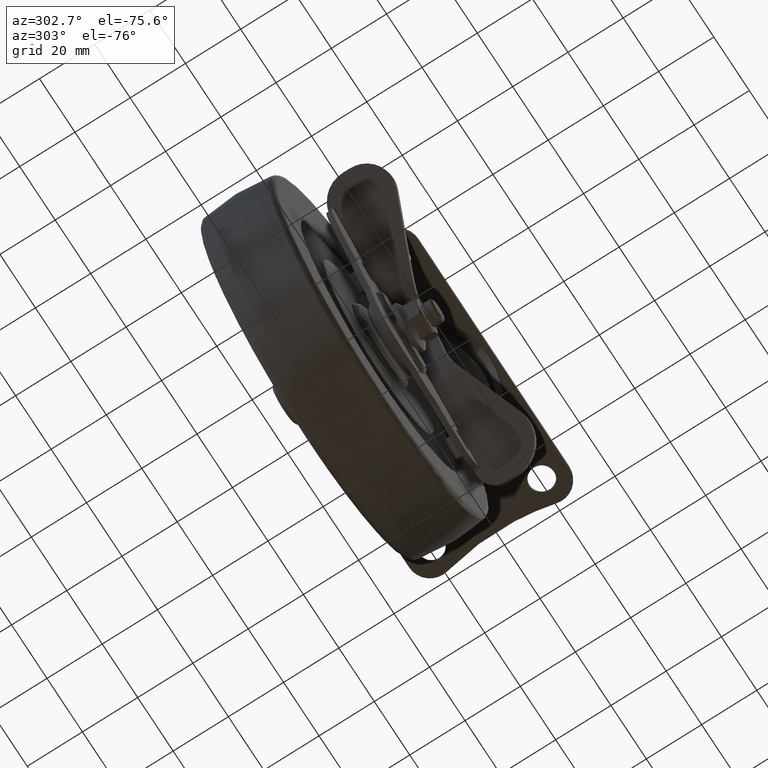
[diagram: clean part render]
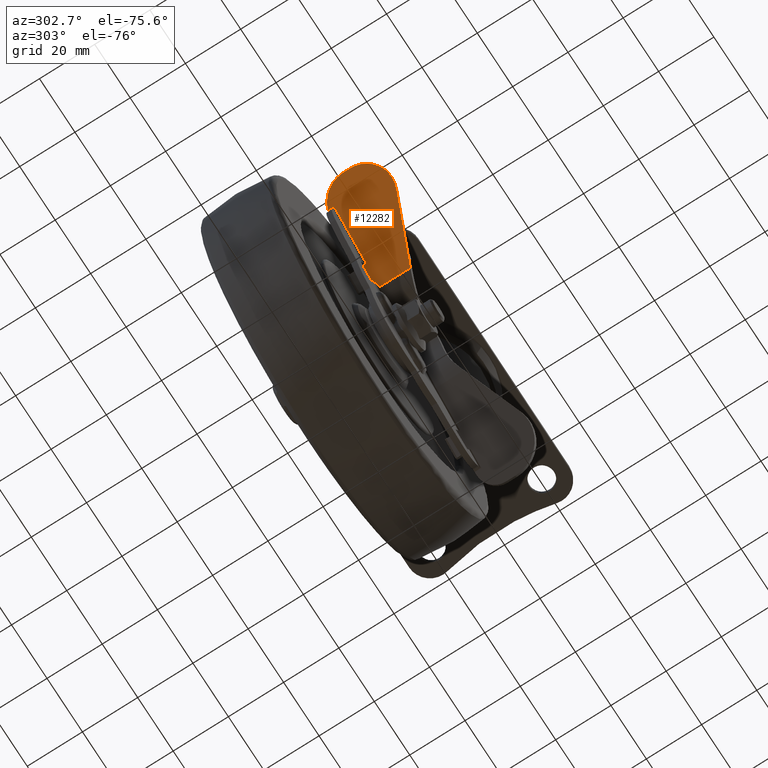
[diagram: same view with one face highlighted and labeled with its STEP entity id]
A machine part, auxiliary view. The second image highlights one B-rep face of the part: STEP entity #12282.
In plain terms, the highlighted face is a freeform B-spline surface patch.
Its self-contained STEP definition (entity closure, byte-faithful):
#11171=CARTESIAN_POINT('',(-52.880306509678682,-17.999992304439900,-66.941418849946047));
#11172=VERTEX_POINT('',#11171);
#11456=CARTESIAN_POINT('',(-58.682686425047507,-17.999992304439900,-63.591413183740691));
#11457=VERTEX_POINT('',#11456);
#11458=CARTESIAN_POINT('',(-58.682686425047507,-17.999992304439900,-63.591413183740691));
#11459=CARTESIAN_POINT('',(-52.880306509678682,-17.999992304439900,-66.941418849946047));
#11460=QUASI_UNIFORM_CURVE('',1,(#11458,#11459),.UNSPECIFIED.,.F.,.U.);
#11461=EDGE_CURVE('',#11457,#11172,#11460,.T.);
#11695=CARTESIAN_POINT('',(-72.063878646271974,-39.910374636582702,-55.865778695053983));
#11696=VERTEX_POINT('',#11695);
#11719=CARTESIAN_POINT('',(-83.537605379128166,-30.452794618957199,-49.241417144824787));
#11720=VERTEX_POINT('',#11719);
#11726=CARTESIAN_POINT('',(-72.063878646271974,-39.910374636582702,-55.865778695053983));
#11727=CARTESIAN_POINT('',(-72.591146814442936,-40.119577591713217,-55.561360126682501));
#11728=CARTESIAN_POINT('',(-73.638921963905233,-40.408219804987759,-54.956426573283267));
#11729=CARTESIAN_POINT('',(-75.531337920376643,-40.514892543055041,-53.863839217054199));
#11730=CARTESIAN_POINT('',(-77.448475561687218,-40.108132572852249,-52.756978816842008));
#11731=CARTESIAN_POINT('',(-79.214742939511325,-39.180309950564762,-51.737223477000441));
#11732=CARTESIAN_POINT('',(-80.616546694632092,-38.024835477096573,-50.927891416667272));
#11733=CARTESIAN_POINT('',(-81.624092879613968,-36.795136098583690,-50.346184176994193));
#11734=CARTESIAN_POINT('',(-82.441916240281273,-35.397476293528563,-49.874013520919647));
#11735=CARTESIAN_POINT('',(-83.259104503439346,-33.423625073517407,-49.402209576632451));
#11736=CARTESIAN_POINT('',(-83.538340431972813,-31.641469574515980,-49.240992683472022));
#11737=CARTESIAN_POINT('',(-83.537605379128166,-30.452794618957199,-49.241417144824787));
#11738=B_SPLINE_CURVE_WITH_KNOTS('',3,(#11726,#11727,#11728,#11729,#11730,#11731,#11732,#11733,#11734,#11735,#11736,#11737),.UNSPECIFIED.,.F.,.U.,(4,1,1,1,1,1,1,1,1,4),(0.000000440627296,1.931337578939978,3.714231211631855,6.537109053953673,8.617133608185014,10.399768747802691,12.479792059949130,13.668388926866710,15.451262890551600,19.016901753415748),.UNSPECIFIED.);
#11739=EDGE_CURVE('',#11696,#11720,#11738,.T.);
#11757=CARTESIAN_POINT('',(-51.296645957795903,-31.673162647545151,-67.855747344825204));
#11758=VERTEX_POINT('',#11757);
#11759=CARTESIAN_POINT('',(-72.063878646271974,-39.910374636582702,-55.865778695053983));
#11760=CARTESIAN_POINT('',(-51.296645957795903,-31.673162647545151,-67.855747344825204));
#11761=QUASI_UNIFORM_CURVE('',1,(#11759,#11760),.UNSPECIFIED.,.F.,.U.);
#11762=EDGE_CURVE('',#11696,#11758,#11761,.T.);
#12088=CARTESIAN_POINT('',(-51.296645957795903,-20.499999999998948,-67.855747344825204));
#12089=VERTEX_POINT('',#12088);
#12090=CARTESIAN_POINT('',(-51.296645957795903,-31.673162647545151,-67.855747344825204));
#12091=CARTESIAN_POINT('',(-51.296645957795903,-20.499999999998948,-67.855747344825204));
#12092=QUASI_UNIFORM_CURVE('',1,(#12090,#12091),.UNSPECIFIED.,.F.,.U.);
#12093=EDGE_CURVE('',#11758,#12089,#12092,.T.);
#12207=CARTESIAN_POINT('',(-83.537605379128166,-27.999999999999051,-49.241417144824787));
#12208=VERTEX_POINT('',#12207);
#12214=CARTESIAN_POINT('',(-83.537605379128166,-30.452794618957199,-49.241417144824787));
#12215=CARTESIAN_POINT('',(-83.537605379128166,-27.999999999999051,-49.241417144824787));
#12216=QUASI_UNIFORM_CURVE('',1,(#12214,#12215),.UNSPECIFIED.,.F.,.U.);
#12217=EDGE_CURVE('',#11720,#12208,#12216,.T.);
#12224=CARTESIAN_POINT('',(-49.686210097189559,-41.573394505575429,-68.785533102237025));
#12225=CARTESIAN_POINT('',(-85.148042104504441,-41.573394505575429,-48.311630888137792));
#12226=CARTESIAN_POINT('',(-49.686210097189559,-16.878517921404079,-68.785533102237025));
#12227=CARTESIAN_POINT('',(-85.148042104504441,-16.878517921404079,-48.311630888137792));
#12228=B_SPLINE_SURFACE_WITH_KNOTS('',1,1,((#12224,#12226),(#12225,#12227)),.UNSPECIFIED.,.F.,.F.,.U.,(2,2),(2,2),(0.0,40.947799041326000),(0.0,24.694876584171350),.UNSPECIFIED.);
#12229=CARTESIAN_POINT('',(-76.862047425210420,-18.266142724693701,-53.095553071724360));
#12230=VERTEX_POINT('',#12229);
#12231=CARTESIAN_POINT('',(-83.537605379128166,-27.999999999999051,-49.241417144824787));
#12232=CARTESIAN_POINT('',(-83.537692864189324,-27.302305320677270,-49.241366635290987));
#12233=CARTESIAN_POINT('',(-83.416966015548937,-25.976737352526300,-49.311068327332023));
#12234=CARTESIAN_POINT('',(-82.909155370287181,-24.104161595003738,-49.604252996750482));
#12235=CARTESIAN_POINT('',(-82.221201606942685,-22.621675316966279,-50.001443364024659));
#12236=CARTESIAN_POINT('',(-81.343188895414585,-21.284883363817219,-50.508364337369898));
#12237=CARTESIAN_POINT('',(-80.336227315498775,-20.168654299925269,-51.089733989023472));
#12238=CARTESIAN_POINT('',(-78.821724056075823,-19.005204070370141,-51.964133022603839));
#12239=CARTESIAN_POINT('',(-77.626730153026784,-18.473670895286212,-52.654063207610108));
#12240=CARTESIAN_POINT('',(-76.862047425210420,-18.266142724693701,-53.095553071724360));
#12241=B_SPLINE_CURVE_WITH_KNOTS('',3,(#12231,#12232,#12233,#12234,#12235,#12236,#12237,#12238,#12239,#12240),.UNSPECIFIED.,.F.,.U.,(4,1,1,1,1,1,1,4),(0.000344037754550,2.093396981174140,3.977156169812808,5.860918083488731,7.116735341281208,9.000490975179954,10.674942800377710,13.395917298883489),.UNSPECIFIED.);
#12242=EDGE_CURVE('',#12208,#12230,#12241,.T.);
#12243=ORIENTED_EDGE('',*,*,#12242,.T.);
#12244=CARTESIAN_POINT('',(-76.862047425210363,-20.499999999998948,-53.095553071724282));
#12245=VERTEX_POINT('',#12244);
#12246=CARTESIAN_POINT('',(-76.862047425210420,-18.266142724693701,-53.095553071724360));
#12247=CARTESIAN_POINT('',(-76.862047425210363,-20.499999999998948,-53.095553071724282));
#12248=QUASI_UNIFORM_CURVE('',1,(#12246,#12247),.UNSPECIFIED.,.F.,.U.);
#12249=EDGE_CURVE('',#12230,#12245,#12248,.T.);
#12250=ORIENTED_EDGE('',*,*,#12249,.T.);
#12251=CARTESIAN_POINT('',(-58.682686808066343,-20.499999999998948,-63.591413847148338));
#12252=VERTEX_POINT('',#12251);
#12253=CARTESIAN_POINT('',(-76.862047425210363,-20.499999999998948,-53.095553071724282));
#12254=CARTESIAN_POINT('',(-58.682686808066343,-20.499999999998948,-63.591413847148338));
#12255=QUASI_UNIFORM_CURVE('',1,(#12253,#12254),.UNSPECIFIED.,.F.,.U.);
#12256=EDGE_CURVE('',#12245,#12252,#12255,.T.);
#12257=ORIENTED_EDGE('',*,*,#12256,.T.);
#12258=CARTESIAN_POINT('',(-58.682686425047507,-17.999992304439900,-63.591413183740691));
#12259=CARTESIAN_POINT('',(-58.682686808066343,-20.499999999998948,-63.591413847148338));
#12260=QUASI_UNIFORM_CURVE('',1,(#12258,#12259),.UNSPECIFIED.,.F.,.U.);
#12261=EDGE_CURVE('',#11457,#12252,#12260,.T.);
#12262=ORIENTED_EDGE('',*,*,#12261,.F.);
#12263=ORIENTED_EDGE('',*,*,#11461,.T.);
#12264=CARTESIAN_POINT('',(-52.880307147145359,-20.499999999999101,-66.941419954059896));
#12265=VERTEX_POINT('',#12264);
#12266=CARTESIAN_POINT('',(-52.880306509678682,-17.999992304439900,-66.941418849946047));
#12267=CARTESIAN_POINT('',(-52.880307147145359,-20.499999999999101,-66.941419954059896));
#12268=QUASI_UNIFORM_CURVE('',1,(#12266,#12267),.UNSPECIFIED.,.F.,.U.);
#12269=EDGE_CURVE('',#11172,#12265,#12268,.T.);
#12270=ORIENTED_EDGE('',*,*,#12269,.T.);
#12271=CARTESIAN_POINT('',(-52.880307147145359,-20.499999999999101,-66.941419954059896));
#12272=CARTESIAN_POINT('',(-51.296645957795903,-20.499999999998948,-67.855747344825204));
#12273=QUASI_UNIFORM_CURVE('',1,(#12271,#12272),.UNSPECIFIED.,.F.,.U.);
#12274=EDGE_CURVE('',#12265,#12089,#12273,.T.);
#12275=ORIENTED_EDGE('',*,*,#12274,.T.);
#12276=ORIENTED_EDGE('',*,*,#12093,.F.);
#12277=ORIENTED_EDGE('',*,*,#11762,.F.);
#12278=ORIENTED_EDGE('',*,*,#11739,.T.);
#12279=ORIENTED_EDGE('',*,*,#12217,.T.);
#12280=EDGE_LOOP('',(#12243,#12250,#12257,#12262,#12263,#12270,#12275,#12276,#12277,#12278,#12279));
#12281=FACE_OUTER_BOUND('',#12280,.T.);
#12282=ADVANCED_FACE('',(#12281),#12228,.T.);